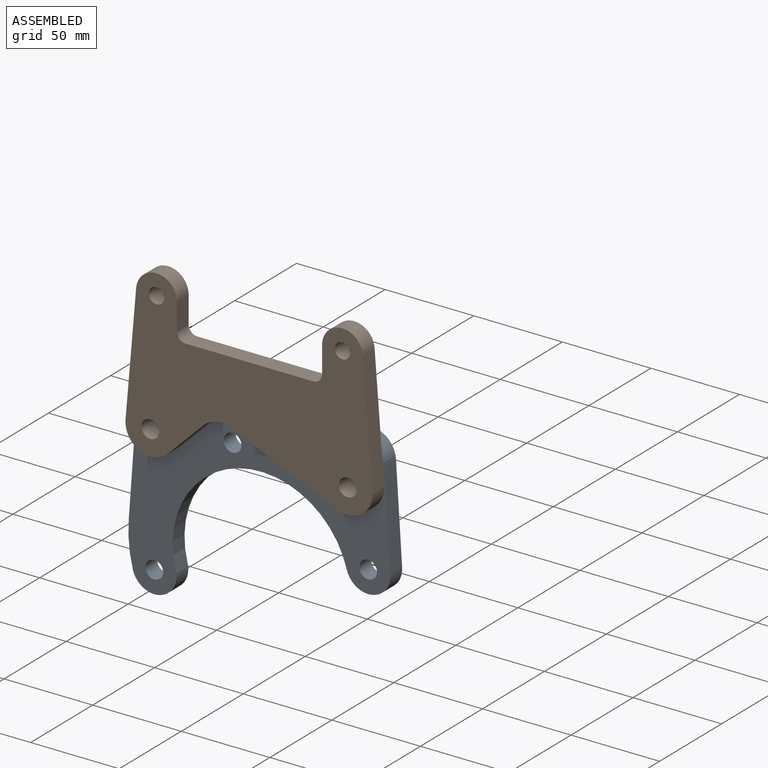
[diagram: assembled view]
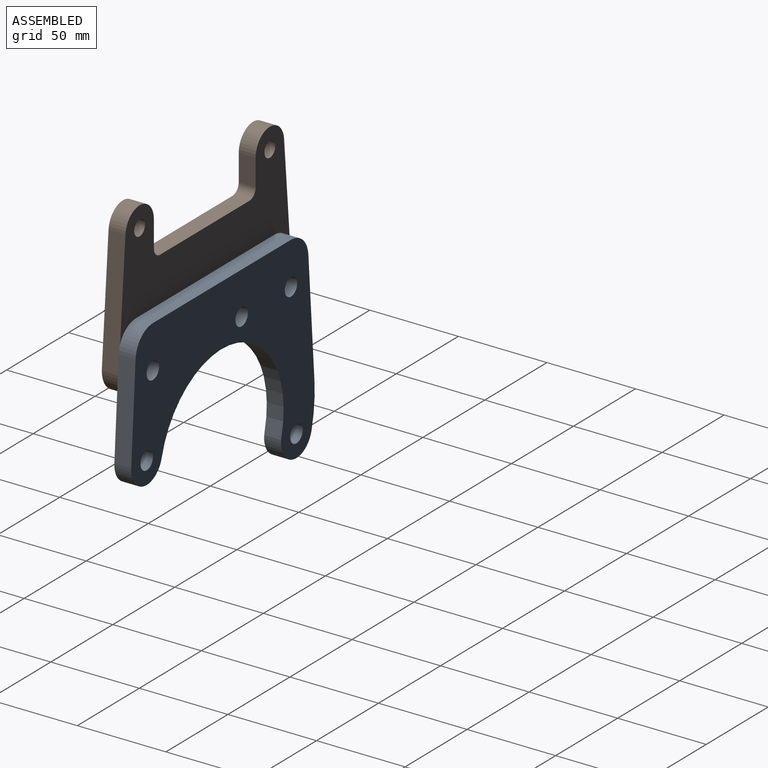
[diagram: assembled view, second angle]
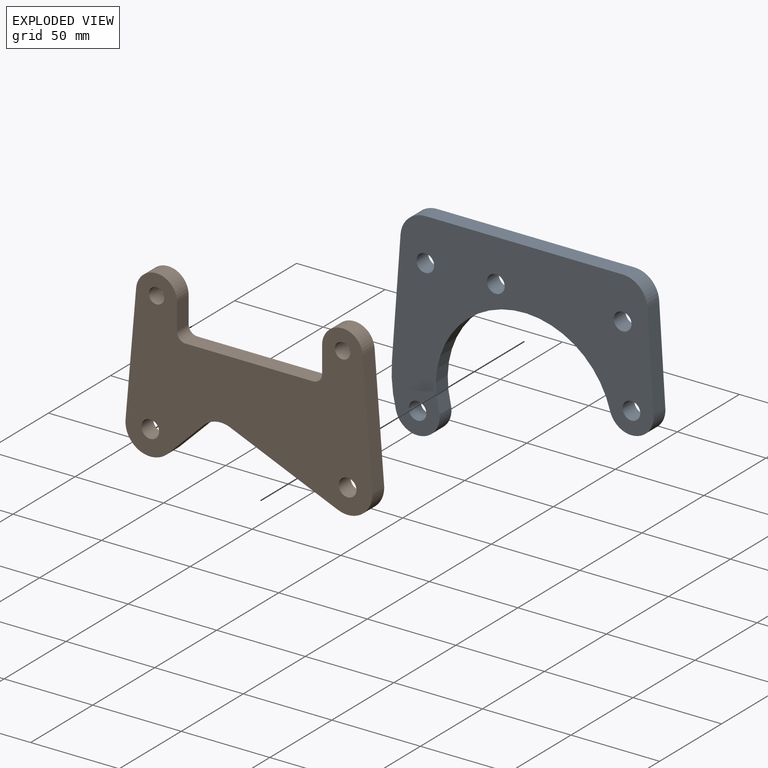
[diagram: exploded view]
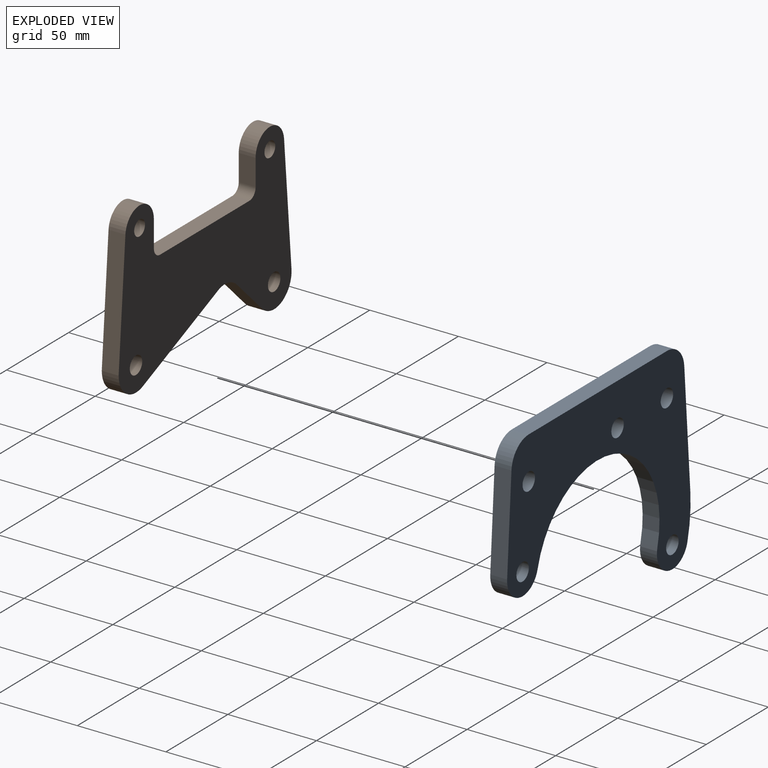
[diagram: exploded view, second angle]
ASSEMBLY  parts=2 mates=2
PART A: 16 faces, bbox 147.9x9.5x113.1 mm
  f0: cylinder r=50mm len=98.3mm, axis (0,1,0), area 1496.2mm2, adj f1,f13,f14,f15
  f1: cylinder r=12.51mm len=24.59mm, axis (0,1,0), area 350.8mm2, adj f0,f2,f14,f15
  f2: plane 54.3x9.53mm, normal (1,0,0.06), area 518.2mm2, adj f1,f3,f14,f15
  f3: cylinder r=14mm len=13.97mm, axis (0,1,0), area 200.9mm2, adj f2,f4,f14,f15
  f4: plane 111.4x9.53mm, normal (0,0,1), area 1061.1mm2, adj f3,f5,f14,f15
  f5: cylinder r=14mm len=13.96mm, axis (0,1,0), area 199.6mm2, adj f4,f6,f14,f15
  f6: plane 65.89x9.53mm, normal (-1,0,0.07), area 629.3mm2, adj f5,f7,f14,f15
  f7: cylinder r=75.02mm len=24.94mm, axis (0,1,0), area 239.8mm2, adj f6,f13,f14,f15
  f8: cylinder r=5mm len=10mm, axis (0,1,0), area 299.2mm2, adj f14,f15
  f9: cylinder r=5mm len=10mm, axis (0,1,0), area 299.2mm2, adj f14,f15
  f10: cylinder r=5mm len=10mm, axis (0,1,0), area 299.2mm2, adj f14,f15
  f11: cylinder r=5mm len=10mm, axis (0,1,0), area 299.2mm2, adj f14,f15
  f12: cylinder r=5mm len=10mm, axis (0,1,0), area 299.2mm2, adj f14,f15
  f13: cylinder r=12.51mm len=24.59mm, axis (0,1,0), area 374.4mm2, adj f0,f7,f14,f15
  f14: plane 147.91x113.07mm, normal (0,-1,0), area 8213mm2, adj f0,f1,f2,f3,f4,f5,f6,f7
  f15: plane 147.91x113.07mm, normal (0,1,0), area 8213mm2, adj f0,f1,f2,f3,f4,f5,f6,f7
PART B: 20 faces, bbox 139.4x9.5x94.5 mm
  f0: cylinder r=5mm len=9.53mm, axis (0,1,0), area 74.8mm2, adj f1,f16,f18,f19
  f1: plane 15x9.53mm, normal (1,0,0), area 142.9mm2, adj f0,f2,f18,f19
  f2: cylinder r=11.5mm len=22.96mm, axis (0,1,0), area 334.6mm2, adj f1,f3,f18,f19
  f3: plane 68.76x9.53mm, normal (-1,0,0.09), area 657.4mm2, adj f2,f4,f18,f19
  f4: cylinder r=14mm len=23.82mm, axis (0,1,0), area 324.4mm2, adj f3,f5,f18,f19
  f5: plane 19.51x19.26mm, normal (0.7,0,-0.71), area 261.2mm2, adj f4,f6,f18,f19
  f6: cylinder r=14mm len=16.93mm, axis (0,1,0), area 176.7mm2, adj f5,f7,f18,f19
  f7: plane 59.67x25.31mm, normal (-0.39,0,-0.92), area 617.4mm2, adj f6,f8,f18,f19
  f8: cylinder r=14mm len=19.47mm, axis (0,1,0), area 281.4mm2, adj f7,f9,f18,f19
  f9: plane 67.94x9.53mm, normal (1,0,0.08), area 649.1mm2, adj f8,f10,f18,f19
  f10: cylinder r=11.5mm len=22.96mm, axis (0,1,0), area 335.4mm2, adj f9,f11,f18,f19
  f11: plane 15x9.53mm, normal (-1,0,0), area 142.9mm2, adj f10,f12,f18,f19
  f12: cylinder r=5mm len=9.53mm, axis (0,1,0), area 74.8mm2, adj f11,f16,f18,f19
  f13: cylinder r=4.35mm len=9.53mm, axis (0,1,0), area 260.3mm2, adj f18,f19
  f14: cylinder r=5mm len=10mm, axis (0,1,0), area 299.2mm2, adj f18,f19
  f15: cylinder r=5mm len=10mm, axis (0,1,0), area 299.2mm2, adj f18,f19
  f16: plane 72x9.53mm, normal (0,0,1), area 685.8mm2, adj f0,f12,f18,f19
  f17: cylinder r=4.35mm len=9.53mm, axis (0,1,0), area 260.3mm2, adj f18,f19
  f18: plane 139.4x94.45mm, normal (0,-1,0), area 8043.7mm2, adj f0,f1,f2,f3,f4,f5,f6,f7
  f19: plane 139.4x94.45mm, normal (0,1,0), area 8043.7mm2, adj f0,f1,f2,f3,f4,f5,f6,f7
PLACE A t=(-142.04,-30.73,-40.47)mm
PLACE B t=(-137.65,-40.26,36.09)mm fixed
MATE planar A.f8 <-> B.f19  axis (0,-1,0) through (-26.25,-40.26,36.09)mm
MATE cylindrical B.f15 <-> A.f11  axis (0,1,0) through (-137.65,-40.26,36.09)mm
